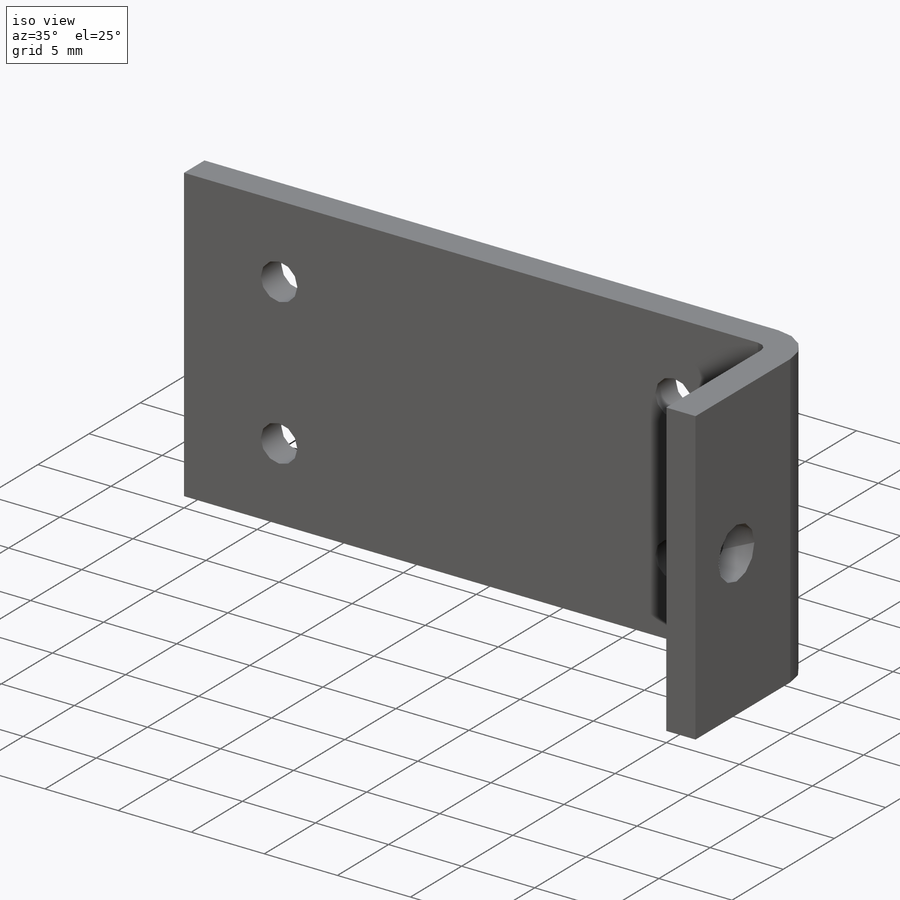
[diagram: iso view]
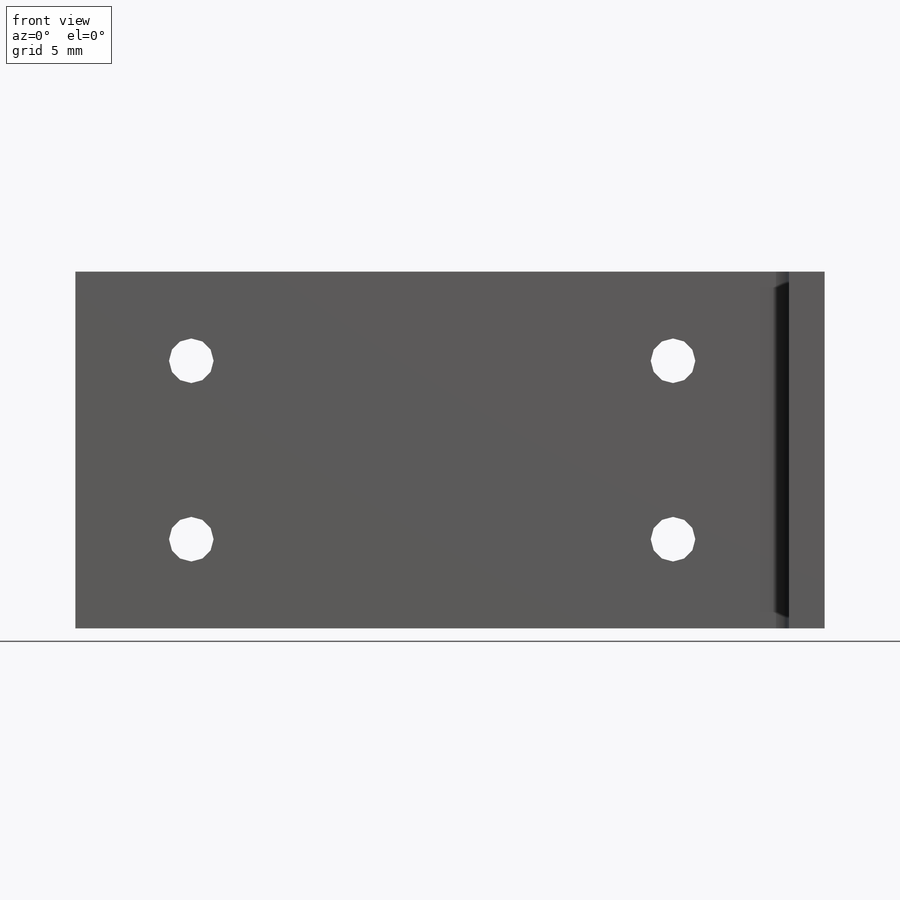
[diagram: front view]
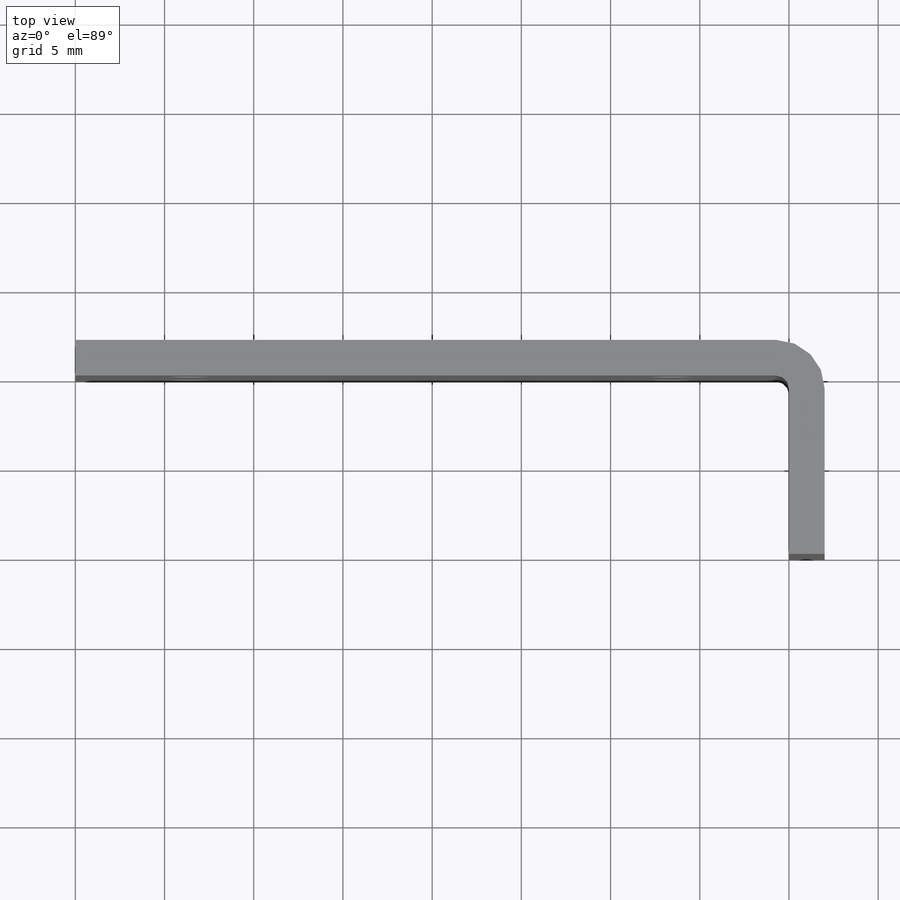
[diagram: top view]
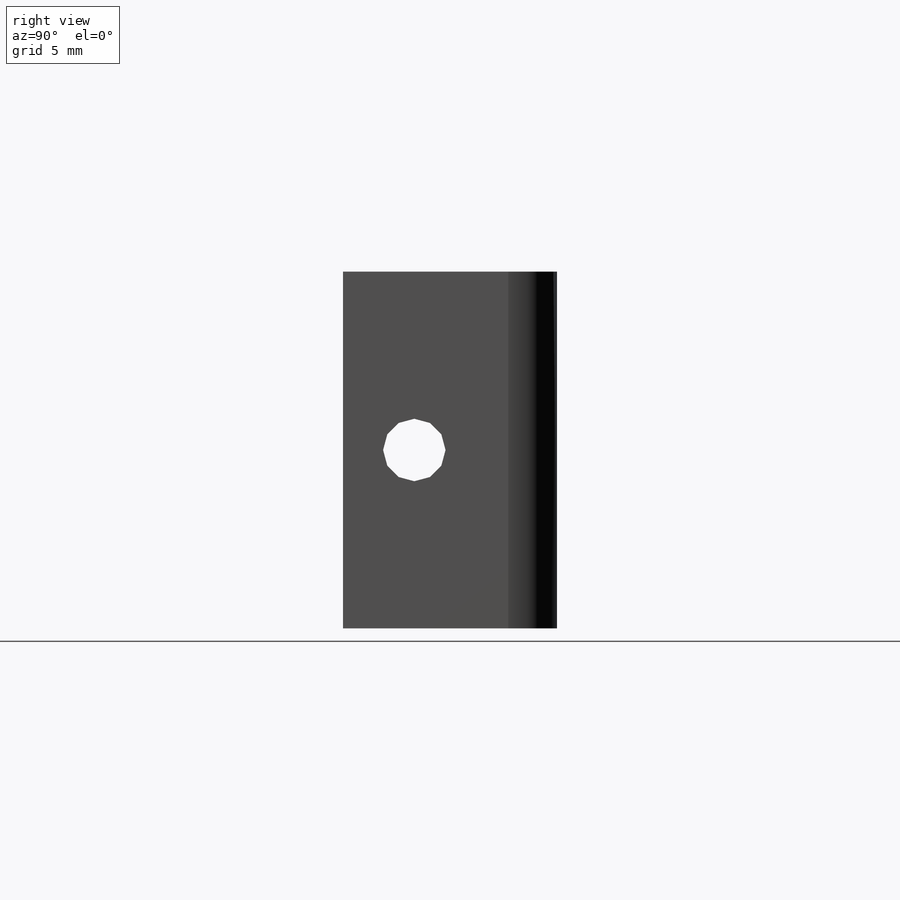
[diagram: right view]
SOLIDWORKS PART (.sldprt)
format: sldprt  version: not decoded by parser v0  size: 261,632 bytes
history: native  units: mm
features: sketch x16, sheet_metal_op x5, hole x4, plane x3, material x1 + 7 further entries (+10 scaffold rows collapsed)
feature tree (46):
  scaffold x10  (default folders/planes/origin — collapsed)
  material  "材質 <未指定>"
  plane  "前基準面"
  plane  "上基準面"
  plane  "右基準面"
  sketch  "草圖1"  dims[c1.D3=~3.379662mm c1.D4=~3.379662mm c1.D5=3.5mm c1.D1=20.0mm c1.D2=40.0mm c2.D3=5.0mm c2.D4=6.5mm c2.D1=0.7366mm c2.D2=0.5 c3.D3=0.0mm c3.D6=500.0mm]
  sheet_metal_op  "基材-凸緣1"
  sketch  "草圖10"  dims[c1.D1=0.7366mm c1.D4=90.0deg c1.D5=1.0 c1.D8=1.0mm c1.D9=1.0mm c2.D1=0.7366mm c2.D2=500.0mm c2.D3=0.0mm c2.D6=10.0mm c2.D7=12.0mm]
  hole  "M3 螺紋孔2"  [1 undecoded]
  sketch  "草圖12"  dims[c1.D1=5.0mm c1.D2=27.0mm c1.D3=6.5mm c2.D1=5.0mm]
  sketch  "草圖11"  dims[hole-wizard template sketch: 59 standard entries collapsed; hole parameters kept: c18.貫穿螺孔鑽直徑=2.5mm c18.貫穿螺孔鑽深度=2.0mm]
  sketch  "草圖14"  dims[D1=8.0mm D2=12.7mm]
  sketch  "草圖13"  dims[hole-wizard template sketch: 59 standard entries collapsed; hole parameters kept: c18.貫穿孔直徑=3.5mm c18.貫穿孔深度=42.0mm]
  sketch  "彎折-線1"
  sketch  "邊界方塊1"
  sheet_metal_op  "鈑金3"
  "平板-型式3"
  sketch  "彎折-線2"
  sketch  "邊界方塊2"
  "草圖變形1"
  hole  "鈑金4"  Diameter=0.7366mm
  sheet_metal_op  "平板-型式3"
  sketch  "彎折-線2"
  sketch  "邊界方塊2"
  "草圖變形1"
  hole  "鈑金5"  Diameter=0.7366mm
  sheet_metal_op  "平板-型式3"
  sketch  "彎折-線2"
  sketch  "邊界方塊2"
  "草圖變形1"
  "平板-<邊線彎折1>1"
  hole  "鈑金6"  Diameter=0.7366mm
  sheet_metal_op  "平板-型式3"
  sketch  "彎折-線2"
  sketch  "邊界方塊2"
  "草圖變形1"
  "平板-<邊線彎折1>1"
decode coverage: 9 of 25 modeling features carry decoded parameters; 7 rows unclassified (native names shown)
note: ~ marks probable driven/reference dimensions
note: 1 parameter value undecoded
note: suppression state not decoded; provenance and decode notes live in map.json
